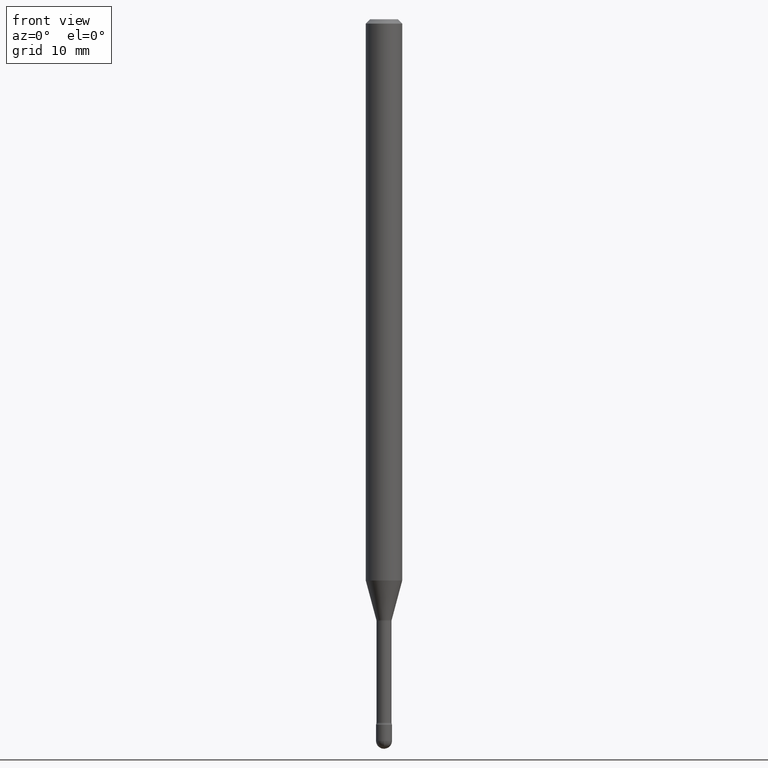
[diagram: clean part render]
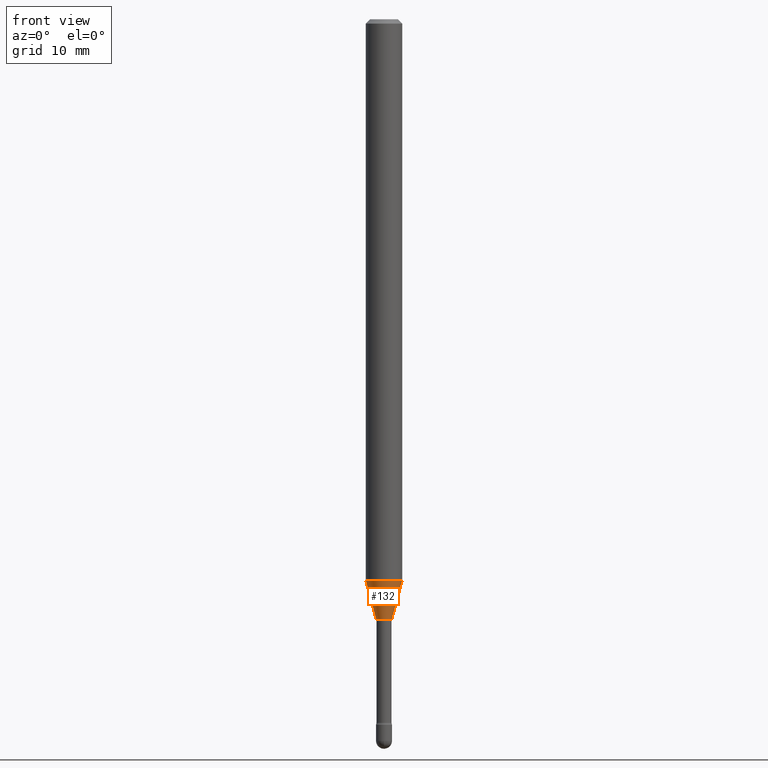
[diagram: same view with one face highlighted and labeled with its STEP entity id]
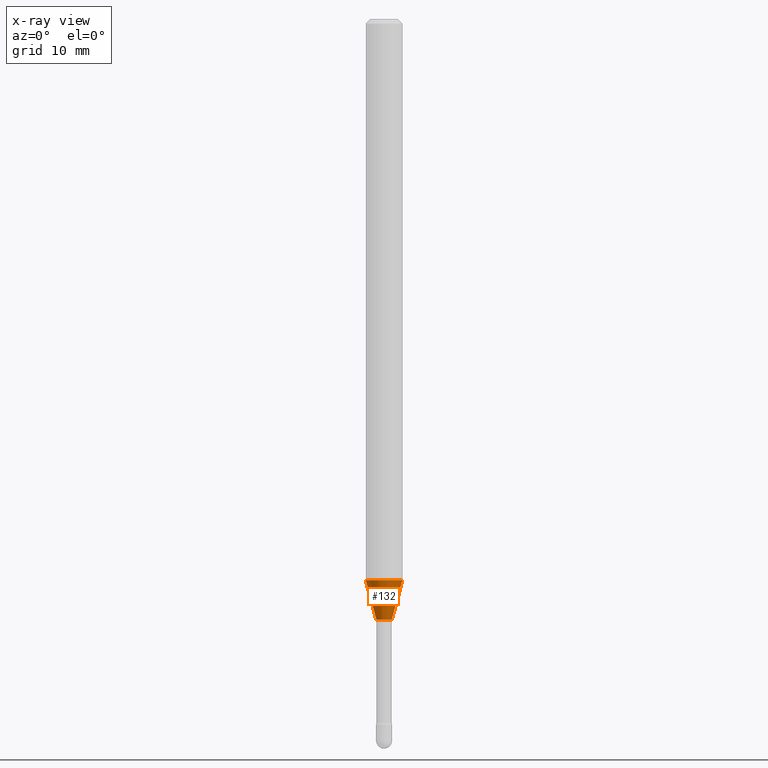
[diagram: x-ray of the same camera — body ghosted, the highlighted face saturated]
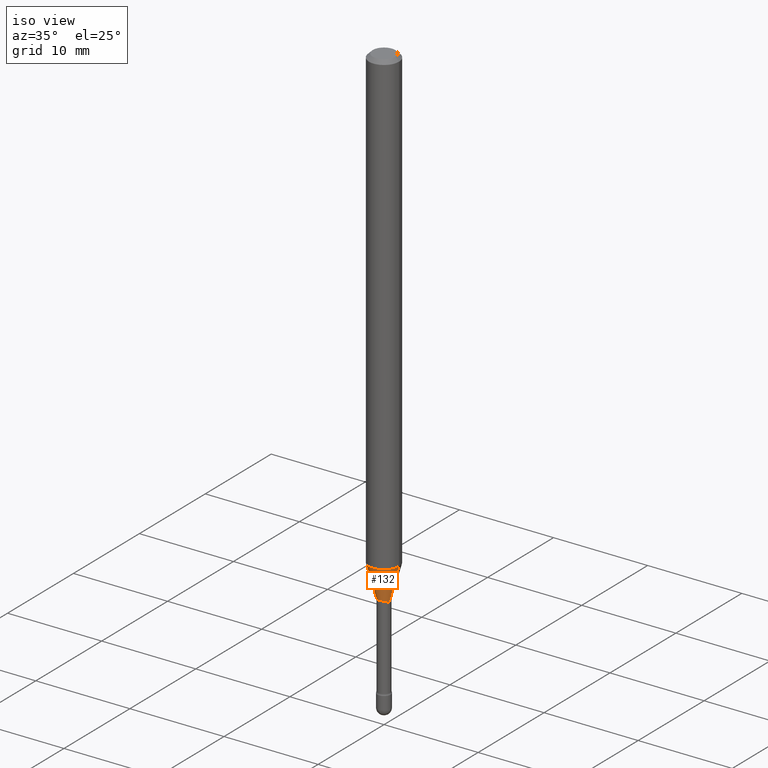
[diagram: same view with one face highlighted and labeled with its STEP entity id]
A machine part, front view. The second image highlights one B-rep face of the part: STEP entity #132.
The next image is the same camera in x-ray: the body ghosted, the highlighted face saturated — about 0% of this face is hidden behind the body in this view.
A second angle (iso view) of the same face is appended — the face is thin or edge-on in the first view.
In plain terms, the highlighted conical surface has half-angle 15 deg.
Its self-contained STEP definition (entity closure, byte-faithful):
#3 = CARTESIAN_POINT ( 'NONE',  ( 5.033001013364303975E-29, -7.185791563603268197E-15, -2.058092501787273321 ) ) ;
#20 = LINE ( 'NONE', #265, #566 ) ;
#49 = VECTOR ( 'NONE', #392, 39.37007874015748143 ) ;
#82 = CARTESIAN_POINT ( 'NONE',  ( 5.033001013364303975E-29, -7.185791563603268197E-15, -2.058092501787273321 ) ) ;
#102 = VERTEX_POINT ( 'NONE', #512 ) ;
#106 = FACE_OUTER_BOUND ( 'NONE', #228, .T. ) ;
#116 = CIRCLE ( 'NONE', #412, 0.02636111260566398329 ) ;
#119 = DIRECTION ( 'NONE',  ( 0.2588190451025210170, 1.565188264969624531E-15, 0.9659258262890682012 ) ) ;
#124 = CONICAL_SURFACE ( 'NONE', #238, 0.02636111260566398329, 0.2617993877991496854 ) ;
#132 = ADVANCED_FACE ( 'NONE', ( #106 ), #124, .T. ) ;
#167 = CARTESIAN_POINT ( 'NONE',  ( -0.02636111260566398329, -6.998484592918182700E-15, -2.058092501787273321 ) ) ;
#169 = CARTESIAN_POINT ( 'NONE',  ( 4.703175343761648131E-29, -6.714887920270539965E-15, -1.923220337902600940 ) ) ;
#188 = ORIENTED_EDGE ( 'NONE', *, *, #520, .F. ) ;
#192 = VERTEX_POINT ( 'NONE', #234 ) ;
#208 = DIRECTION ( 'NONE',  ( 1.000000000000000000, -6.982962677686256455E-15, 0.000000000000000000 ) ) ;
#218 = LINE ( 'NONE', #167, #49 ) ;
#228 = EDGE_LOOP ( 'NONE', ( #188, #406, #336, #440 ) ) ;
#234 = CARTESIAN_POINT ( 'NONE',  ( 0.06250000000000000000, -7.151323087625930845E-15, -1.923220337902600940 ) ) ;
#238 = AXIS2_PLACEMENT_3D ( 'NONE', #3, #462, #208 ) ;
#259 = DIRECTION ( 'NONE',  ( 1.000000000000000000, -6.982962677686256455E-15, 0.000000000000000000 ) ) ;
#265 = CARTESIAN_POINT ( 'NONE',  ( 0.02636111260566398329, -7.369870229070904024E-15, -2.058092501787273321 ) ) ;
#336 = ORIENTED_EDGE ( 'NONE', *, *, #546, .T. ) ;
#344 = DIRECTION ( 'NONE',  ( -2.445468806185136597E-29, 3.491481338843145583E-15, 1.000000000000000000 ) ) ;
#355 = VERTEX_POINT ( 'NONE', #474 ) ;
#374 = EDGE_CURVE ( 'NONE', #454, #192, #426, .T. ) ;
#389 = EDGE_CURVE ( 'NONE', #102, #355, #116, .T. ) ;
#392 = DIRECTION ( 'NONE',  ( -0.2588190451025210170, 5.211531920934547886E-15, 0.9659258262890682012 ) ) ;
#406 = ORIENTED_EDGE ( 'NONE', *, *, #389, .T. ) ;
#412 = AXIS2_PLACEMENT_3D ( 'NONE', #82, #436, #259 ) ;
#426 = CIRCLE ( 'NONE', #438, 0.06250000000000000000 ) ;
#436 = DIRECTION ( 'NONE',  ( -2.445468806185136597E-29, 3.491481338843145583E-15, 1.000000000000000000 ) ) ;
#438 = AXIS2_PLACEMENT_3D ( 'NONE', #169, #344, #444 ) ;
#440 = ORIENTED_EDGE ( 'NONE', *, *, #374, .F. ) ;
#444 = DIRECTION ( 'NONE',  ( 1.000000000000000000, -6.982962677686262766E-15, 0.000000000000000000 ) ) ;
#454 = VERTEX_POINT ( 'NONE', #545 ) ;
#462 = DIRECTION ( 'NONE',  ( -2.445468806185136597E-29, 3.491481338843145583E-15, 1.000000000000000000 ) ) ;
#474 = CARTESIAN_POINT ( 'NONE',  ( 0.02636111260566398329, -7.369870229070904024E-15, -2.058092501787273321 ) ) ;
#512 = CARTESIAN_POINT ( 'NONE',  ( -0.02636111260566398329, -6.634641651669329630E-15, -2.058092501787273321 ) ) ;
#520 = EDGE_CURVE ( 'NONE', #102, #454, #218, .T. ) ;
#545 = CARTESIAN_POINT ( 'NONE',  ( -0.06250000000000000000, -6.270798710420477349E-15, -1.923220337902600940 ) ) ;
#546 = EDGE_CURVE ( 'NONE', #355, #192, #20, .T. ) ;
#566 = VECTOR ( 'NONE', #119, 39.37007874015748143 ) ;